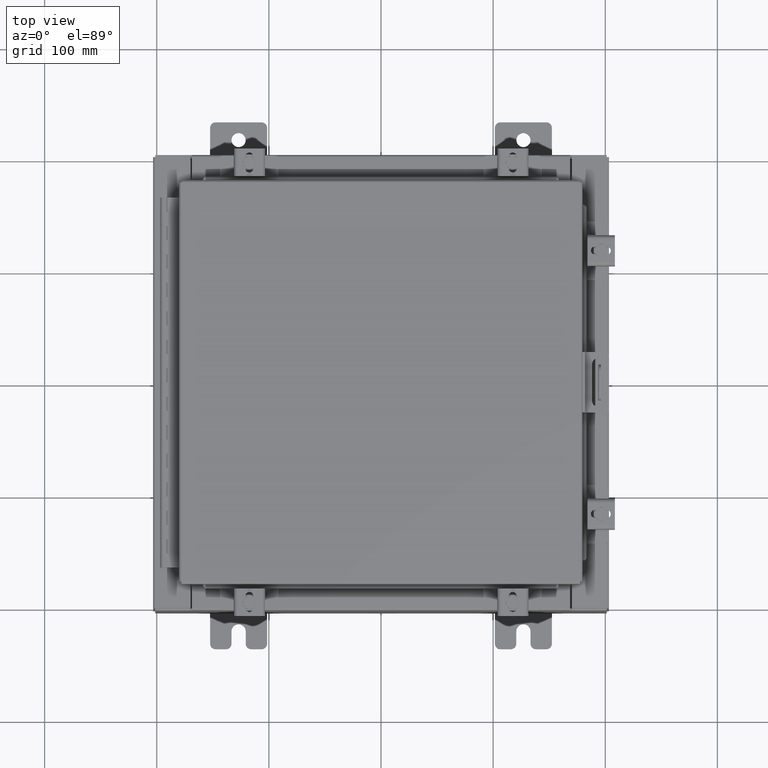
[diagram: clean part render]
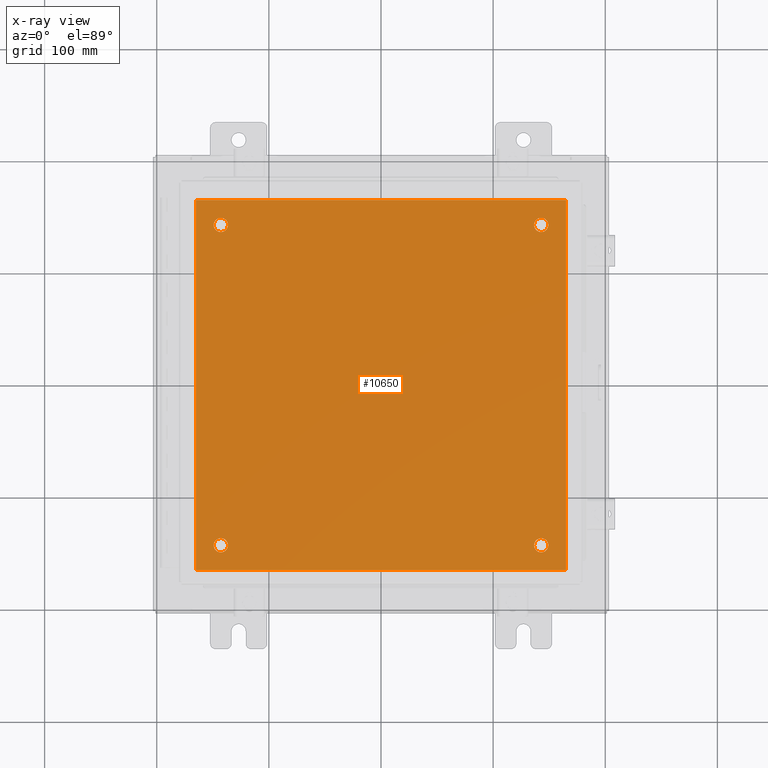
[diagram: x-ray — body ghosted, one internal face saturated and labeled with its STEP entity id]
A machine part, top view, then the same camera in x-ray: the body is ghosted and one INTERNAL B-rep face — a face not visible from any outside direction — is saturated and labeled: STEP entity #10650.
In plain terms, the highlighted planar face has unit normal (0, 0, -1).
Its self-contained STEP definition (entity closure, byte-faithful):
#161 = CARTESIAN_POINT ( 'NONE',  ( 5.625000000000002700, 5.625000000000000900, -0.1039999999999999800 ) ) ;
#465 = ORIENTED_EDGE ( 'NONE', *, *, #17684, .F. ) ;
#638 = ORIENTED_EDGE ( 'NONE', *, *, #23764, .T. ) ;
#720 = CARTESIAN_POINT ( 'NONE',  ( -6.500000000000000000, 6.500000000000000900, -0.1039999999999999800 ) ) ;
#742 = DIRECTION ( 'NONE',  ( -0.0000000000000000000, -0.0000000000000000000, 1.000000000000000000 ) ) ;
#840 = AXIS2_PLACEMENT_3D ( 'NONE', #17589, #5522, #19628 ) ;
#872 = LINE ( 'NONE', #1404, #10912 ) ;
#1020 = VECTOR ( 'NONE', #20656, 39.37007874015748100 ) ;
#1404 = CARTESIAN_POINT ( 'NONE',  ( -6.500000000000000000, -6.499999999999999100, -0.1039999999999999800 ) ) ;
#1472 = AXIS2_PLACEMENT_3D ( 'NONE', #1620, #13886, #2322 ) ;
#1620 = CARTESIAN_POINT ( 'NONE',  ( -5.625000000000002700, -5.625000000000000900, -0.1039999999999999800 ) ) ;
#1873 = EDGE_CURVE ( 'NONE', #17728, #10910, #19060, .T. ) ;
#2156 = DIRECTION ( 'NONE',  ( -1.000000000000000000, 0.0000000000000000000, 0.0000000000000000000 ) ) ;
#2301 = VECTOR ( 'NONE', #11786, 39.37007874015748100 ) ;
#2322 = DIRECTION ( 'NONE',  ( -1.000000000000000000, 0.0000000000000000000, 0.0000000000000000000 ) ) ;
#2421 = CARTESIAN_POINT ( 'NONE',  ( -5.375000000000002700, -5.625000000000000900, -0.1039999999999999800 ) ) ;
#2510 = CARTESIAN_POINT ( 'NONE',  ( 6.500000000000000000, -6.499999999999999100, -0.1039999999999999800 ) ) ;
#2559 = EDGE_LOOP ( 'NONE', ( #7777, #17435 ) ) ;
#2590 = EDGE_CURVE ( 'NONE', #10910, #17728, #25364, .T. ) ;
#2614 = CARTESIAN_POINT ( 'NONE',  ( 5.625000000000002700, -5.625000000000000900, -0.1039999999999999800 ) ) ;
#3407 = VERTEX_POINT ( 'NONE', #8061 ) ;
#3414 = DIRECTION ( 'NONE',  ( -0.0000000000000000000, -1.000000000000000000, -0.0000000000000000000 ) ) ;
#3476 = AXIS2_PLACEMENT_3D ( 'NONE', #12792, #742, #14795 ) ;
#3502 = VERTEX_POINT ( 'NONE', #22600 ) ;
#3516 = AXIS2_PLACEMENT_3D ( 'NONE', #8217, #22331, #10233 ) ;
#3544 = EDGE_CURVE ( 'NONE', #5467, #7356, #11709, .T. ) ;
#4013 = AXIS2_PLACEMENT_3D ( 'NONE', #6573, #6285, #21911 ) ;
#4265 = VERTEX_POINT ( 'NONE', #7146 ) ;
#4331 = FACE_BOUND ( 'NONE', #20355, .T. ) ;
#4418 = DIRECTION ( 'NONE',  ( 1.000000000000000000, 0.0000000000000000000, 0.0000000000000000000 ) ) ;
#4641 = DIRECTION ( 'NONE',  ( -1.000000000000000000, 0.0000000000000000000, 0.0000000000000000000 ) ) ;
#4866 = CARTESIAN_POINT ( 'NONE',  ( -5.625000000000002700, 5.625000000000000900, -0.1039999999999999800 ) ) ;
#4906 = CARTESIAN_POINT ( 'NONE',  ( 6.500000000000000000, 6.500000000000000900, -0.1039999999999999800 ) ) ;
#5467 = VERTEX_POINT ( 'NONE', #21277 ) ;
#5522 = DIRECTION ( 'NONE',  ( -0.0000000000000000000, -0.0000000000000000000, 1.000000000000000000 ) ) ;
#5605 = DIRECTION ( 'NONE',  ( 0.0000000000000000000, 0.0000000000000000000, -1.000000000000000000 ) ) ;
#6285 = DIRECTION ( 'NONE',  ( -0.0000000000000000000, -0.0000000000000000000, 1.000000000000000000 ) ) ;
#6391 = LINE ( 'NONE', #25938, #2301 ) ;
#6435 = CARTESIAN_POINT ( 'NONE',  ( -6.500000000000000000, -6.499999999999999100, -0.1039999999999999800 ) ) ;
#6573 = CARTESIAN_POINT ( 'NONE',  ( -5.625000000000002700, -5.625000000000000900, -0.1039999999999999800 ) ) ;
#6885 = DIRECTION ( 'NONE',  ( -1.000000000000000000, 0.0000000000000000000, 0.0000000000000000000 ) ) ;
#6950 = VERTEX_POINT ( 'NONE', #17855 ) ;
#7146 = CARTESIAN_POINT ( 'NONE',  ( -6.500000000000000000, -6.499999999999999100, -0.1039999999999999800 ) ) ;
#7356 = VERTEX_POINT ( 'NONE', #4906 ) ;
#7377 = CIRCLE ( 'NONE', #19726, 0.2499999999999998100 ) ;
#7777 = ORIENTED_EDGE ( 'NONE', *, *, #12730, .T. ) ;
#8061 = CARTESIAN_POINT ( 'NONE',  ( -5.875000000000001800, 5.625000000000000900, -0.1039999999999999800 ) ) ;
#8217 = CARTESIAN_POINT ( 'NONE',  ( 5.625000000000002700, 5.625000000000000900, -0.1039999999999999800 ) ) ;
#9070 = EDGE_CURVE ( 'NONE', #25690, #18359, #22384, .T. ) ;
#9684 = FACE_BOUND ( 'NONE', #21037, .T. ) ;
#10233 = DIRECTION ( 'NONE',  ( -1.000000000000000000, 0.0000000000000000000, 0.0000000000000000000 ) ) ;
#10591 = EDGE_CURVE ( 'NONE', #17770, #4265, #872, .T. ) ;
#10650 = ADVANCED_FACE ( 'NONE', ( #9684, #20411, #25809, #4331, #25162 ), #23695, .T. ) ;
#10910 = VERTEX_POINT ( 'NONE', #2421 ) ;
#10912 = VECTOR ( 'NONE', #3414, 39.37007874015748100 ) ;
#11709 = LINE ( 'NONE', #2510, #1020 ) ;
#11786 = DIRECTION ( 'NONE',  ( -1.000000000000000000, -0.0000000000000000000, -0.0000000000000000000 ) ) ;
#12583 = ORIENTED_EDGE ( 'NONE', *, *, #21389, .T. ) ;
#12597 = ORIENTED_EDGE ( 'NONE', *, *, #24548, .F. ) ;
#12730 = EDGE_CURVE ( 'NONE', #14990, #3502, #23520, .T. ) ;
#12792 = CARTESIAN_POINT ( 'NONE',  ( -5.625000000000002700, 5.625000000000000900, -0.1039999999999999800 ) ) ;
#13052 = CIRCLE ( 'NONE', #3516, 0.2499999999999987000 ) ;
#13875 = ORIENTED_EDGE ( 'NONE', *, *, #16649, .T. ) ;
#13886 = DIRECTION ( 'NONE',  ( -0.0000000000000000000, -0.0000000000000000000, 1.000000000000000000 ) ) ;
#14203 = DIRECTION ( 'NONE',  ( -0.0000000000000000000, -0.0000000000000000000, 1.000000000000000000 ) ) ;
#14795 = DIRECTION ( 'NONE',  ( -1.000000000000000000, 0.0000000000000000000, 0.0000000000000000000 ) ) ;
#14990 = VERTEX_POINT ( 'NONE', #18196 ) ;
#15392 = AXIS2_PLACEMENT_3D ( 'NONE', #2614, #16687, #4641 ) ;
#15633 = CARTESIAN_POINT ( 'NONE',  ( 0.0000000000000000000, 0.0000000000000000000, -0.1039999999999999800 ) ) ;
#16428 = AXIS2_PLACEMENT_3D ( 'NONE', #15633, #5605, #19716 ) ;
#16628 = CARTESIAN_POINT ( 'NONE',  ( -5.875000000000001800, -5.625000000000000900, -0.1039999999999999800 ) ) ;
#16649 = EDGE_CURVE ( 'NONE', #18359, #25690, #17481, .T. ) ;
#16687 = DIRECTION ( 'NONE',  ( -0.0000000000000000000, -0.0000000000000000000, 1.000000000000000000 ) ) ;
#17137 = ORIENTED_EDGE ( 'NONE', *, *, #10591, .F. ) ;
#17426 = ORIENTED_EDGE ( 'NONE', *, *, #1873, .T. ) ;
#17435 = ORIENTED_EDGE ( 'NONE', *, *, #23538, .T. ) ;
#17481 = CIRCLE ( 'NONE', #840, 0.2499999999999987000 ) ;
#17589 = CARTESIAN_POINT ( 'NONE',  ( 5.625000000000002700, -5.625000000000000900, -0.1039999999999999800 ) ) ;
#17684 = EDGE_CURVE ( 'NONE', #4265, #5467, #23812, .T. ) ;
#17728 = VERTEX_POINT ( 'NONE', #16628 ) ;
#17770 = VERTEX_POINT ( 'NONE', #720 ) ;
#17855 = CARTESIAN_POINT ( 'NONE',  ( -5.375000000000002700, 5.625000000000000900, -0.1039999999999999800 ) ) ;
#18196 = CARTESIAN_POINT ( 'NONE',  ( 5.875000000000000900, 5.625000000000000900, -0.1039999999999999800 ) ) ;
#18359 = VERTEX_POINT ( 'NONE', #19001 ) ;
#18959 = DIRECTION ( 'NONE',  ( -0.0000000000000000000, -0.0000000000000000000, 1.000000000000000000 ) ) ;
#19001 = CARTESIAN_POINT ( 'NONE',  ( 5.875000000000000900, -5.625000000000000900, -0.1039999999999999800 ) ) ;
#19060 = CIRCLE ( 'NONE', #1472, 0.2499999999999998100 ) ;
#19406 = EDGE_LOOP ( 'NONE', ( #13875, #20409 ) ) ;
#19467 = ORIENTED_EDGE ( 'NONE', *, *, #2590, .T. ) ;
#19628 = DIRECTION ( 'NONE',  ( -1.000000000000000000, 0.0000000000000000000, 0.0000000000000000000 ) ) ;
#19716 = DIRECTION ( 'NONE',  ( -1.000000000000000000, 0.0000000000000000000, -0.0000000000000000000 ) ) ;
#19726 = AXIS2_PLACEMENT_3D ( 'NONE', #4866, #18959, #6885 ) ;
#20355 = EDGE_LOOP ( 'NONE', ( #638, #12583 ) ) ;
#20409 = ORIENTED_EDGE ( 'NONE', *, *, #9070, .T. ) ;
#20411 = FACE_BOUND ( 'NONE', #19406, .T. ) ;
#20656 = DIRECTION ( 'NONE',  ( 0.0000000000000000000, 1.000000000000000000, 0.0000000000000000000 ) ) ;
#21037 = EDGE_LOOP ( 'NONE', ( #19467, #17426 ) ) ;
#21054 = AXIS2_PLACEMENT_3D ( 'NONE', #161, #14203, #2156 ) ;
#21277 = CARTESIAN_POINT ( 'NONE',  ( 6.500000000000000000, -6.499999999999999100, -0.1039999999999999800 ) ) ;
#21389 = EDGE_CURVE ( 'NONE', #3407, #6950, #25464, .T. ) ;
#21911 = DIRECTION ( 'NONE',  ( -1.000000000000000000, 0.0000000000000000000, 0.0000000000000000000 ) ) ;
#22165 = CARTESIAN_POINT ( 'NONE',  ( 5.375000000000003600, -5.625000000000000900, -0.1039999999999999800 ) ) ;
#22331 = DIRECTION ( 'NONE',  ( -0.0000000000000000000, -0.0000000000000000000, 1.000000000000000000 ) ) ;
#22384 = CIRCLE ( 'NONE', #15392, 0.2499999999999987000 ) ;
#22600 = CARTESIAN_POINT ( 'NONE',  ( 5.375000000000003600, 5.625000000000000900, -0.1039999999999999800 ) ) ;
#23084 = EDGE_LOOP ( 'NONE', ( #26011, #465, #17137, #12597 ) ) ;
#23175 = VECTOR ( 'NONE', #4418, 39.37007874015748100 ) ;
#23520 = CIRCLE ( 'NONE', #21054, 0.2499999999999987000 ) ;
#23538 = EDGE_CURVE ( 'NONE', #3502, #14990, #13052, .T. ) ;
#23695 = PLANE ( 'NONE',  #16428 ) ;
#23764 = EDGE_CURVE ( 'NONE', #6950, #3407, #7377, .T. ) ;
#23812 = LINE ( 'NONE', #6435, #23175 ) ;
#24548 = EDGE_CURVE ( 'NONE', #7356, #17770, #6391, .T. ) ;
#25162 = FACE_OUTER_BOUND ( 'NONE', #23084, .T. ) ;
#25364 = CIRCLE ( 'NONE', #4013, 0.2499999999999998100 ) ;
#25464 = CIRCLE ( 'NONE', #3476, 0.2499999999999998100 ) ;
#25690 = VERTEX_POINT ( 'NONE', #22165 ) ;
#25809 = FACE_BOUND ( 'NONE', #2559, .T. ) ;
#25938 = CARTESIAN_POINT ( 'NONE',  ( -6.500000000000000000, 6.500000000000000900, -0.1039999999999999800 ) ) ;
#26011 = ORIENTED_EDGE ( 'NONE', *, *, #3544, .F. ) ;